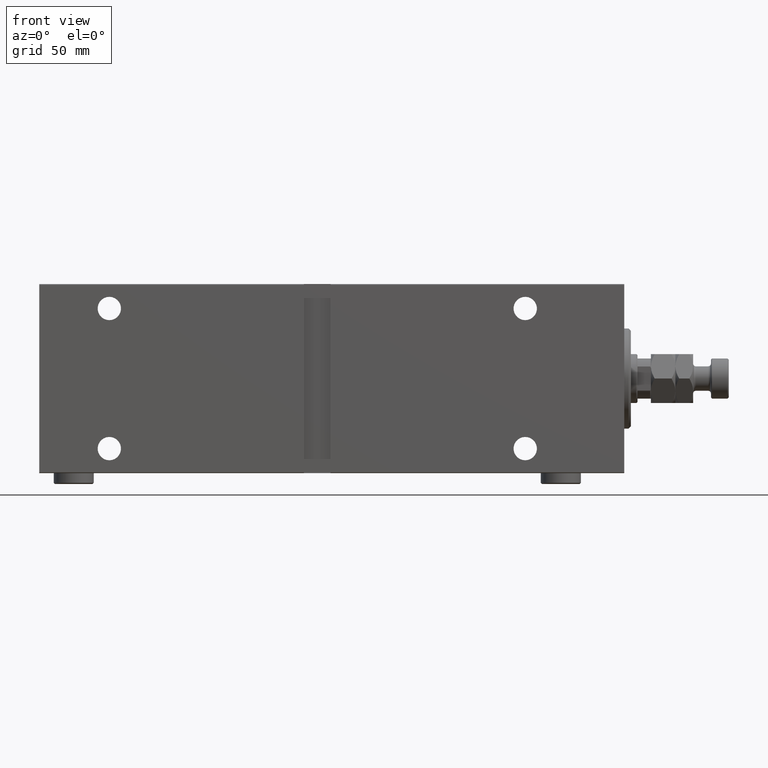
[diagram: clean part render]
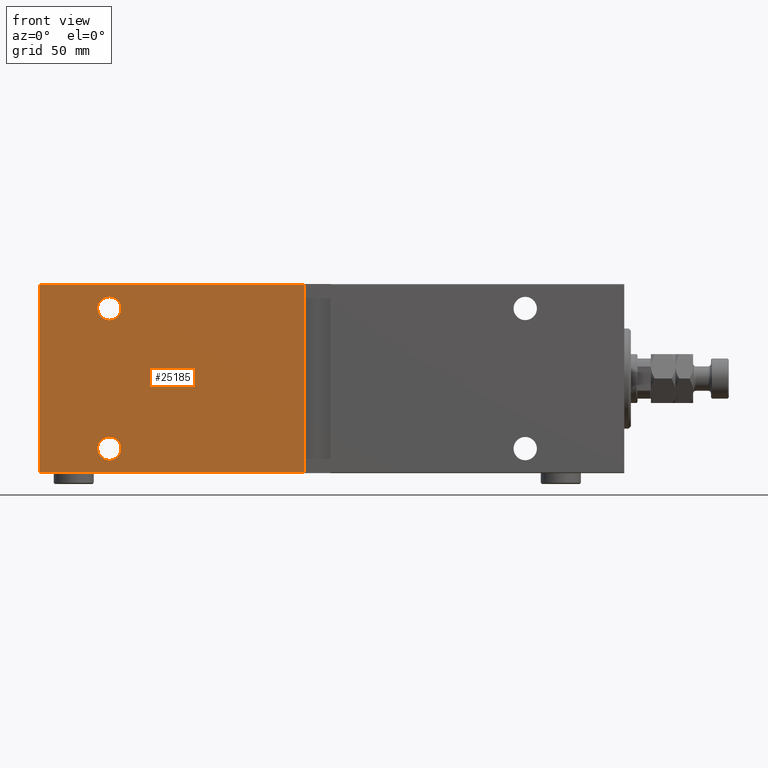
[diagram: same view with one face highlighted and labeled with its STEP entity id]
A machine part, front view. The second image highlights one B-rep face of the part: STEP entity #25185.
In plain terms, the highlighted planar face has unit normal (-0, 1, -0).
Its self-contained STEP definition (entity closure, byte-faithful):
#634 = LINE ( 'NONE', #22275, #38701 ) ;
#877 = ORIENTED_EDGE ( 'NONE', *, *, #43339, .T. ) ;
#1292 = AXIS2_PLACEMENT_3D ( 'NONE', #27651, #9929, #24124 ) ;
#1924 = EDGE_CURVE ( 'NONE', #14957, #30004, #15571, .T. ) ;
#3640 = CARTESIAN_POINT ( 'NONE',  ( 144.0000000000000284, 31.50000000000001421, -42.20000000000001705 ) ) ;
#3681 = VECTOR ( 'NONE', #4215, 1000.000000000000000 ) ;
#4215 = DIRECTION ( 'NONE',  ( -0.000000000000000000, 1.632680918566406793E-16, -1.000000000000000000 ) ) ;
#4410 = VERTEX_POINT ( 'NONE', #19958 ) ;
#4521 = EDGE_LOOP ( 'NONE', ( #27231, #22008, #21784, #18417 ) ) ;
#4751 = LINE ( 'NONE', #26157, #36438 ) ;
#6220 = FACE_BOUND ( 'NONE', #21571, .T. ) ;
#6411 = CARTESIAN_POINT ( 'NONE',  ( 231.4999999999999716, 31.50000000000000000, 36.75000000000001421 ) ) ;
#6476 = DIRECTION ( 'NONE',  ( 0.000000000000000000, -1.000000000000000000, -1.632680918566406054E-16 ) ) ;
#6994 = CARTESIAN_POINT ( 'NONE',  ( 231.4999999999999716, 31.50000000000000000, 31.50000000000000711 ) ) ;
#7136 = EDGE_CURVE ( 'NONE', #30004, #14957, #31974, .T. ) ;
#7830 = VERTEX_POINT ( 'NONE', #14426 ) ;
#8648 = CARTESIAN_POINT ( 'NONE',  ( 144.0000000000000284, 31.50000000000000000, 42.19999999999998153 ) ) ;
#9717 = EDGE_CURVE ( 'NONE', #19478, #13812, #26084, .T. ) ;
#9929 = DIRECTION ( 'NONE',  ( 0.000000000000000000, -1.000000000000000000, -1.632680918566406054E-16 ) ) ;
#10219 = ORIENTED_EDGE ( 'NONE', *, *, #43935, .T. ) ;
#11344 = DIRECTION ( 'NONE',  ( -1.000000000000000000, 0.000000000000000000, 0.000000000000000000 ) ) ;
#11943 = CIRCLE ( 'NONE', #14942, 5.250000000000004441 ) ;
#13418 = PLANE ( 'NONE',  #1292 ) ;
#13812 = VERTEX_POINT ( 'NONE', #3640 ) ;
#14426 = CARTESIAN_POINT ( 'NONE',  ( 263.0000000000000000, 31.50000000000001421, -42.20000000000001705 ) ) ;
#14625 = ORIENTED_EDGE ( 'NONE', *, *, #7136, .T. ) ;
#14942 = AXIS2_PLACEMENT_3D ( 'NONE', #35102, #39254, #42040 ) ;
#14957 = VERTEX_POINT ( 'NONE', #35242 ) ;
#15571 = CIRCLE ( 'NONE', #38615, 5.250000000000004441 ) ;
#16106 = DIRECTION ( 'NONE',  ( 1.000000000000000000, 0.000000000000000000, 0.000000000000000000 ) ) ;
#17113 = VECTOR ( 'NONE', #40080, 1000.000000000000000 ) ;
#18417 = ORIENTED_EDGE ( 'NONE', *, *, #41223, .T. ) ;
#19318 = AXIS2_PLACEMENT_3D ( 'NONE', #26367, #33135, #26837 ) ;
#19370 = CIRCLE ( 'NONE', #45366, 5.250000000000004441 ) ;
#19478 = VERTEX_POINT ( 'NONE', #8648 ) ;
#19958 = CARTESIAN_POINT ( 'NONE',  ( 231.4999999999999716, 31.50000000000000000, 26.25000000000000355 ) ) ;
#20400 = FACE_BOUND ( 'NONE', #36230, .T. ) ;
#21571 = EDGE_LOOP ( 'NONE', ( #35174, #14625 ) ) ;
#21784 = ORIENTED_EDGE ( 'NONE', *, *, #9717, .F. ) ;
#22008 = ORIENTED_EDGE ( 'NONE', *, *, #43414, .T. ) ;
#22275 = CARTESIAN_POINT ( 'NONE',  ( 263.0000000000000000, 31.50000000000001421, -42.20000000000001705 ) ) ;
#24124 = DIRECTION ( 'NONE',  ( 0.000000000000000000, 1.632680918566406054E-16, -1.000000000000000000 ) ) ;
#25185 = ADVANCED_FACE ( 'NONE', ( #6220, #20400, #34605 ), #13418, .F. ) ;
#26084 = LINE ( 'NONE', #29585, #3681 ) ;
#26146 = CARTESIAN_POINT ( 'NONE',  ( 263.0000000000000000, 31.50000000000001421, -42.50000000000000711 ) ) ;
#26157 = CARTESIAN_POINT ( 'NONE',  ( 263.0000000000000000, 31.50000000000000000, 42.19999999999998863 ) ) ;
#26367 = CARTESIAN_POINT ( 'NONE',  ( 231.5000000000000284, 31.50000000000001421, -31.49999999999999289 ) ) ;
#26830 = LINE ( 'NONE', #26146, #17113 ) ;
#26837 = DIRECTION ( 'NONE',  ( 0.000000000000000000, 0.000000000000000000, -1.000000000000000000 ) ) ;
#27231 = ORIENTED_EDGE ( 'NONE', *, *, #38564, .F. ) ;
#27651 = CARTESIAN_POINT ( 'NONE',  ( 263.0000000000000000, 31.50000000000001421, -42.50000000000000711 ) ) ;
#27906 = DIRECTION ( 'NONE',  ( 0.000000000000000000, 0.000000000000000000, -1.000000000000000000 ) ) ;
#28190 = VERTEX_POINT ( 'NONE', #41432 ) ;
#28319 = CARTESIAN_POINT ( 'NONE',  ( 231.5000000000000284, 31.50000000000001421, -36.75000000000000000 ) ) ;
#29585 = CARTESIAN_POINT ( 'NONE',  ( 144.0000000000000284, 31.50000000000001421, -42.49999999999998579 ) ) ;
#30004 = VERTEX_POINT ( 'NONE', #28319 ) ;
#31974 = CIRCLE ( 'NONE', #19318, 5.250000000000004441 ) ;
#33135 = DIRECTION ( 'NONE',  ( 0.000000000000000000, -1.000000000000000000, -1.632680918566406054E-16 ) ) ;
#34605 = FACE_OUTER_BOUND ( 'NONE', #4521, .T. ) ;
#35102 = CARTESIAN_POINT ( 'NONE',  ( 231.4999999999999716, 31.50000000000000000, 31.50000000000000711 ) ) ;
#35162 = DIRECTION ( 'NONE',  ( 0.000000000000000000, 0.000000000000000000, -1.000000000000000000 ) ) ;
#35174 = ORIENTED_EDGE ( 'NONE', *, *, #1924, .T. ) ;
#35242 = CARTESIAN_POINT ( 'NONE',  ( 231.5000000000000284, 31.50000000000001421, -26.24999999999998934 ) ) ;
#36230 = EDGE_LOOP ( 'NONE', ( #10219, #877 ) ) ;
#36438 = VECTOR ( 'NONE', #16106, 1000.000000000000000 ) ;
#38113 = CARTESIAN_POINT ( 'NONE',  ( 231.5000000000000284, 31.50000000000001421, -31.49999999999999289 ) ) ;
#38564 = EDGE_CURVE ( 'NONE', #7830, #28190, #26830, .T. ) ;
#38615 = AXIS2_PLACEMENT_3D ( 'NONE', #38113, #6476, #27906 ) ;
#38701 = VECTOR ( 'NONE', #11344, 1000.000000000000000 ) ;
#39254 = DIRECTION ( 'NONE',  ( 0.000000000000000000, -1.000000000000000000, -1.632680918566406054E-16 ) ) ;
#40080 = DIRECTION ( 'NONE',  ( 0.000000000000000000, -1.632680918566406300E-16, 1.000000000000000000 ) ) ;
#41223 = EDGE_CURVE ( 'NONE', #19478, #28190, #4751, .T. ) ;
#41432 = CARTESIAN_POINT ( 'NONE',  ( 263.0000000000000000, 31.50000000000000000, 42.19999999999998863 ) ) ;
#42040 = DIRECTION ( 'NONE',  ( 0.000000000000000000, 0.000000000000000000, -1.000000000000000000 ) ) ;
#42104 = DIRECTION ( 'NONE',  ( 0.000000000000000000, -1.000000000000000000, -1.632680918566406054E-16 ) ) ;
#43339 = EDGE_CURVE ( 'NONE', #4410, #44569, #11943, .T. ) ;
#43414 = EDGE_CURVE ( 'NONE', #7830, #13812, #634, .T. ) ;
#43935 = EDGE_CURVE ( 'NONE', #44569, #4410, #19370, .T. ) ;
#44569 = VERTEX_POINT ( 'NONE', #6411 ) ;
#45366 = AXIS2_PLACEMENT_3D ( 'NONE', #6994, #42104, #35162 ) ;